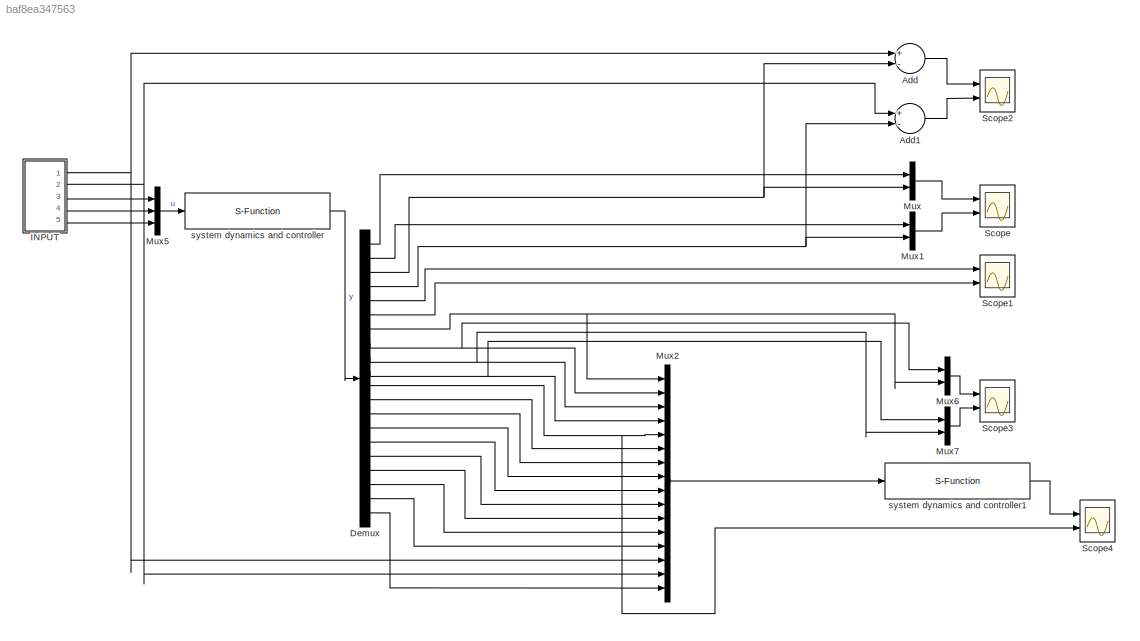
MODEL slx_baf8ea347563
KIND model
BLOCK [Sum] Add
  InputSameDT = off
  Inputs = +-
  OutDataTypeStr = Inherit: Inherit via internal rule
  Ports = [2, 1]
  SaturateOnIntegerOverflow = off
BLOCK [Sum] Add1
  InputSameDT = off
  Inputs = +-
  OutDataTypeStr = Inherit: Inherit via internal rule
  Ports = [2, 1]
  SaturateOnIntegerOverflow = off
BLOCK [Demux] Demux
  DisplayOption = bar
  Outputs = 20
  Ports = [1, 20]
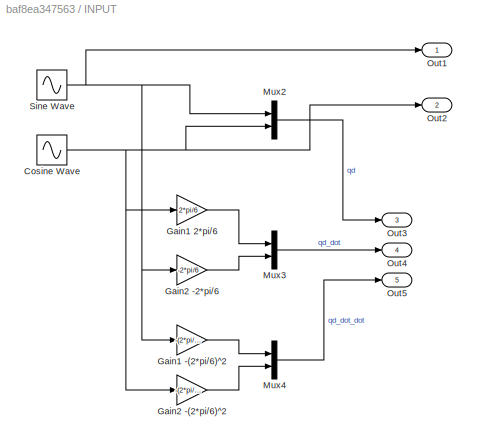
BLOCK [SubSystem] INPUT
  FunctionWithSeparateData = off
  MaskHideContents = off
  MinAlgLoopOccurrences = off
  Opaque = off
  Ports = [0, 5]
  PropExecContextOutsideSubsystem = off
  RTWSystemCode = Auto
  RequestExecContextInheritance = off
BLOCK [Sin] INPUT/Cosine Wave
  Amplitude = 0.2
  Frequency = 2*pi/6
  Phase = pi/2
  Ports = [0, 1]
  SampleTime = 0
BLOCK [Gain] INPUT/Gain1 -(2*pi//6)^2
  Gain = -(2*pi/6)^2
  OutDataTypeStr = Inherit: Inherit via internal rule
  ParamDataTypeStr = Inherit: Inherit via internal rule
  SaturateOnIntegerOverflow = off
BLOCK [Gain] INPUT/Gain1 2*pi//6
  Gain = 2*pi/6
  OutDataTypeStr = Inherit: Inherit via internal rule
  ParamDataTypeStr = Inherit: Inherit via internal rule
  SaturateOnIntegerOverflow = off
BLOCK [Gain] INPUT/Gain2 -(2*pi//6)^2
  Gain = -(2*pi/6)^2
  OutDataTypeStr = Inherit: Inherit via internal rule
  ParamDataTypeStr = Inherit: Inherit via internal rule
  SaturateOnIntegerOverflow = off
BLOCK [Gain] INPUT/Gain2 -2*pi//6
  Gain = -2*pi/6
  OutDataTypeStr = Inherit: Inherit via internal rule
  ParamDataTypeStr = Inherit: Inherit via internal rule
  SaturateOnIntegerOverflow = off
BLOCK [Mux] INPUT/Mux2
  DisplayOption = bar
  Inputs = 2
  Ports = [2, 1]
BLOCK [Mux] INPUT/Mux3
  DisplayOption = bar
  Inputs = 2
  Ports = [2, 1]
BLOCK [Mux] INPUT/Mux4
  DisplayOption = bar
  Inputs = 2
  Ports = [2, 1]
BLOCK [Outport] INPUT/Out1
  IconDisplay = Port number
BLOCK [Outport] INPUT/Out2
  IconDisplay = Port number
  Port = 2
BLOCK [Outport] INPUT/Out3
  IconDisplay = Port number
  Port = 3
BLOCK [Outport] INPUT/Out4
  IconDisplay = Port number
  Port = 4
BLOCK [Outport] INPUT/Out5
  IconDisplay = Port number
  Port = 5
BLOCK [Sin] INPUT/Sine Wave
  Amplitude = 0.2
  Frequency = 2*pi/6
  Ports = [0, 1]
  SampleTime = 0
BLOCK [Mux] Mux
  DisplayOption = bar
  Inputs = 2
  Ports = [2, 1]
BLOCK [Mux] Mux1
  DisplayOption = bar
  Inputs = 2
  Ports = [2, 1]
BLOCK [Mux] Mux2
  DisplayOption = bar
  Inputs = 16
  Ports = [16, 1]
BLOCK [Mux] Mux5
  DisplayOption = bar
  Inputs = 3
  Ports = [3, 1]
BLOCK [Mux] Mux6
  DisplayOption = bar
  Inputs = 2
  Ports = [2, 1]
BLOCK [Mux] Mux7
  DisplayOption = bar
  Inputs = 2
  Ports = [2, 1]
BLOCK [Scope] Scope
  DataFormat = StructureWithTime
  Floating = off
  NumInputPorts = 2
  Ports = [2]
  SampleTime = 0
  ShowLegends = off
  YMax = 5~5
  YMin = -5~-5
BLOCK [Scope] Scope1
  DataFormat = StructureWithTime
  Floating = off
  NumInputPorts = 2
  Ports = [2]
  SampleTime = 0
  SaveName = ScopeData1
  ShowLegends = off
  YMax = 5~5
  YMin = -5~-5
BLOCK [Scope] Scope2
  DataFormat = StructureWithTime
  Floating = off
  NumInputPorts = 2
  Ports = [2]
  SampleTime = 0
  SaveName = ScopeData2
  ShowLegends = off
  YMax = 5~5
  YMin = -5~-5
BLOCK [Scope] Scope3
  DataFormat = StructureWithTime
  Floating = off
  NumInputPorts = 2
  Ports = [2]
  SampleTime = 0
  SaveName = ScopeData3
  ShowLegends = off
  YMax = 3.5e+22~7e+22
  YMin = 2.09715e+06~4.1943e+06
BLOCK [Scope] Scope4
  DataFormat = StructureWithTime
  Floating = off
  NumInputPorts = 2
  Ports = [2]
  SampleTime = 0
  SaveName = ScopeData4
  ShowLegends = off
  YMax = 5~5
  YMin = -5~-5
BLOCK [S-Function] system dynamics and controller
  EnableBusSupport = off
  FunctionName = state_output_project_2
  Ports = [1, 1]
BLOCK [S-Function] system dynamics and controller1
  EnableBusSupport = off
  FunctionName = project_3_fault_addition
  Ports = [1, 1]
LINE Add1:1 -> Scope2:2
LINE Add:1 -> Scope2:1
LINE Demux:1 -> Mux:1
NET Demux:10 -> Mux2:4, Mux7:1
NET Demux:11 -> Mux2:5, Scope4:2
LINE Demux:12 -> Mux2:6
LINE Demux:13 -> Mux2:7
LINE Demux:14 -> Mux2:8
LINE Demux:15 -> Mux2:9
LINE Demux:16 -> Mux2:10
LINE Demux:17 -> Mux2:11
LINE Demux:18 -> Mux2:12
LINE Demux:19 -> Mux2:13
LINE Demux:2 -> Mux1:1
LINE Demux:20 -> Mux2:16
NET Demux:3 -> Add:2, Mux:2
NET Demux:4 -> Add1:2, Mux1:2
LINE Demux:5 -> Scope1:1
LINE Demux:6 -> Scope1:2
NET Demux:7 -> Mux2:1, Mux6:2
NET Demux:8 -> Mux2:2, Mux6:1
NET Demux:9 -> Mux2:3, Mux7:2
NET INPUT/Cosine Wave:1 -> INPUT/Gain1 2*pi//6:1, INPUT/Gain2 -(2*pi//6)^2:1, INPUT/Mux2:2, INPUT/Out2:1
LINE INPUT/Gain1 -(2*pi//6)^2:1 -> INPUT/Mux4:1
LINE INPUT/Gain1 2*pi//6:1 -> INPUT/Mux3:1
LINE INPUT/Gain2 -(2*pi//6)^2:1 -> INPUT/Mux4:2
LINE INPUT/Gain2 -2*pi//6:1 -> INPUT/Mux3:2
LINE INPUT/Mux2:1 -> INPUT/Out3:1
LINE INPUT/Mux3:1 -> INPUT/Out4:1
LINE INPUT/Mux4:1 -> INPUT/Out5:1
NET INPUT/Sine Wave:1 -> INPUT/Gain1 -(2*pi//6)^2:1, INPUT/Gain2 -2*pi//6:1, INPUT/Mux2:1, INPUT/Out1:1
NET INPUT:1 -> Add:1, Mux2:14
NET INPUT:2 -> Add1:1, Mux2:15
LINE INPUT:3 -> Mux5:1
LINE INPUT:4 -> Mux5:2
LINE INPUT:5 -> Mux5:3
LINE Mux1:1 -> Scope:2
LINE Mux2:1 -> system dynamics and controller1:1
LINE Mux5:1 -> system dynamics and controller:1
LINE Mux6:1 -> Scope3:1
LINE Mux7:1 -> Scope3:2
LINE Mux:1 -> Scope:1
LINE system dynamics and controller1:1 -> Scope4:1
LINE system dynamics and controller:1 -> Demux:1
note: NET lines group one-source signal fan-out (src -> all destinations, sorted); 1:1 wires keep LINE
